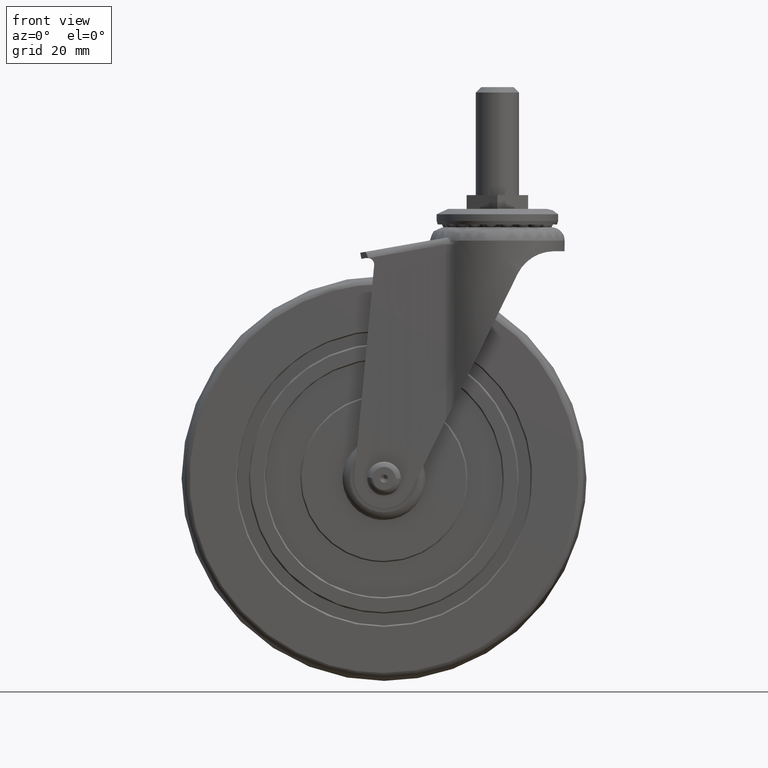
[diagram: clean part render]
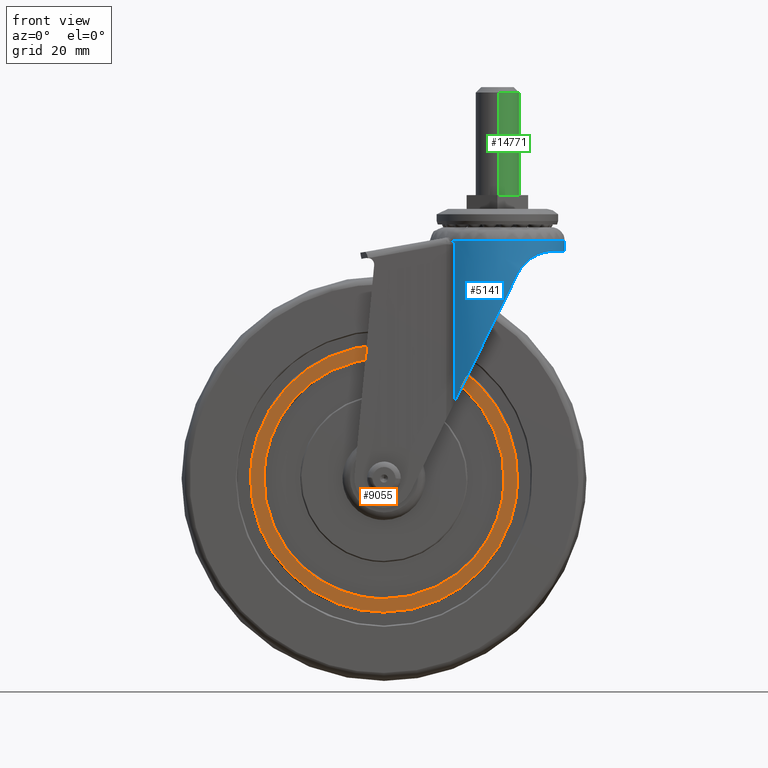
[diagram: same view with three faces highlighted in distinct colors, each labeled with its STEP entity id]
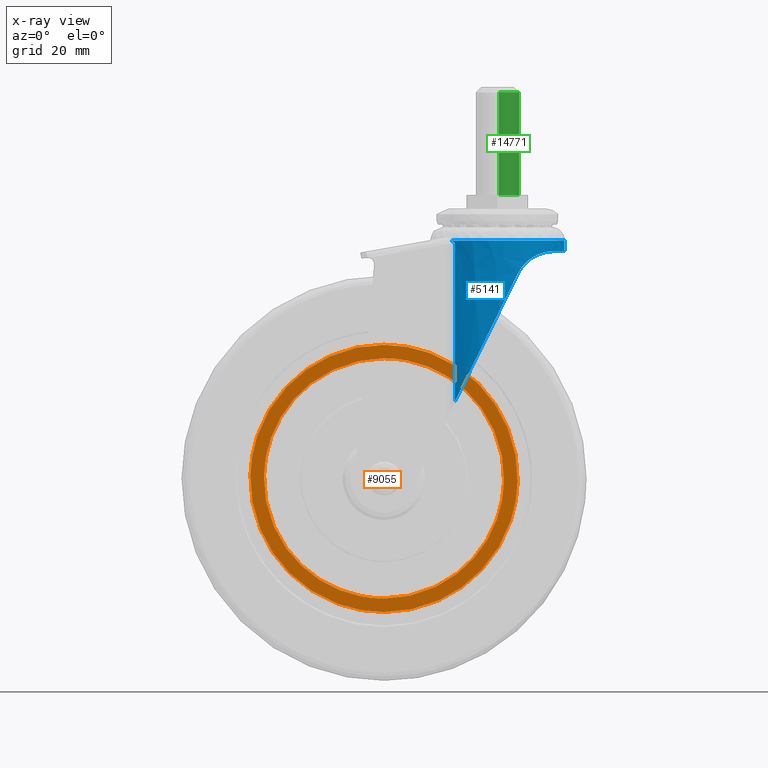
[diagram: x-ray of the same camera — body ghosted, the three highlighted faces saturated]
A machine part, front view with three faces highlighted in distinct colors.
The next image is the same camera in x-ray (body ghosted, the three faces saturated) — at least one of them is partly hidden behind the body in this view.
Their STEP definitions:

[orange] entity #9055 — the highlighted face is a freeform B-spline surface patch.
#6862=CARTESIAN_POINT('',(49.484367495390323,-13.499999999999970,-1.243939728265890));
#6863=VERTEX_POINT('',#6862);
#6877=CARTESIAN_POINT('',(0.0,-13.500000000000000,-49.500000000000000));
#6878=VERTEX_POINT('',#6877);
#6879=CARTESIAN_POINT('',(0.0,-13.500000000000000,-49.500000000000000));
#6880=CARTESIAN_POINT('',(48.271304869661485,-13.500000000000000,-49.500000000000007));
#6881=CARTESIAN_POINT('',(49.484367495390309,-13.499999999999968,-1.243939728265890));
#6889=(BOUNDED_CURVE()B_SPLINE_CURVE(2,(#6879,#6880,#6881),.UNSPECIFIED.,.F.,.U.)B_SPLINE_CURVE_WITH_KNOTS((3,3),(0.0,0.245579891765167),.UNSPECIFIED.)CURVE()GEOMETRIC_REPRESENTATION_ITEM()RATIONAL_B_SPLINE_CURVE((1.0,0.712285260100164,0.989826157671087))REPRESENTATION_ITEM(''));
#6890=EDGE_CURVE('',#6878,#6863,#6889,.T.);
#6892=CARTESIAN_POINT('',(-49.484367495390323,-13.499999999999970,1.243939728265908));
#6893=VERTEX_POINT('',#6892);
#6894=CARTESIAN_POINT('',(-49.484367495390316,-13.499999999999964,1.243939728265908));
#6895=CARTESIAN_POINT('',(-49.500000000000000,-13.499999999999996,0.622068090763839));
#6896=CARTESIAN_POINT('',(-49.500000000000000,-13.500000000000000,1.855278E-015));
#6897=CARTESIAN_POINT('',(-49.499999999999993,-13.500000000000000,-49.499999999999993));
#6898=CARTESIAN_POINT('',(0.0,-13.500000000000000,-49.500000000000000));
#6906=(BOUNDED_CURVE()B_SPLINE_CURVE(2,(#6894,#6895,#6896,#6897,#6898),.UNSPECIFIED.,.F.,.U.)B_SPLINE_CURVE_WITH_KNOTS((3,2,3),(0.745579891765167,0.750000000000000,1.0),.UNSPECIFIED.)CURVE()GEOMETRIC_REPRESENTATION_ITEM()RATIONAL_B_SPLINE_CURVE((0.989826157671086,0.994821521086383,1.0,0.707106781186548,1.0))REPRESENTATION_ITEM(''));
#6907=EDGE_CURVE('',#6893,#6878,#6906,.T.);
#6951=CARTESIAN_POINT('',(0.0,-13.500000000000000,49.500000000000000));
#6952=VERTEX_POINT('',#6951);
#6953=CARTESIAN_POINT('',(0.0,-13.500000000000000,49.500000000000000));
#6954=CARTESIAN_POINT('',(-48.271304869661357,-13.500000000000000,49.500000000000000));
#6955=CARTESIAN_POINT('',(-49.484367495390309,-13.499999999999973,1.243939728265908));
#6963=(BOUNDED_CURVE()B_SPLINE_CURVE(2,(#6953,#6954,#6955),.UNSPECIFIED.,.F.,.U.)B_SPLINE_CURVE_WITH_KNOTS((3,3),(0.500000000000000,0.745579891765166),.UNSPECIFIED.)CURVE()GEOMETRIC_REPRESENTATION_ITEM()RATIONAL_B_SPLINE_CURVE((1.0,0.712285260100165,0.989826157671086))REPRESENTATION_ITEM(''));
#6964=EDGE_CURVE('',#6952,#6893,#6963,.T.);
#6966=CARTESIAN_POINT('',(49.484367495390316,-13.499999999999972,-1.243939728265890));
#6967=CARTESIAN_POINT('',(49.500000000000007,-13.500000000000005,-0.622068090763819));
#6968=CARTESIAN_POINT('',(49.500000000000000,-13.500000000000000,1.855278E-015));
#6969=CARTESIAN_POINT('',(49.499999999999993,-13.500000000000000,49.499999999999993));
#6970=CARTESIAN_POINT('',(0.0,-13.500000000000000,49.500000000000000));
#6978=(BOUNDED_CURVE()B_SPLINE_CURVE(2,(#6966,#6967,#6968,#6969,#6970),.UNSPECIFIED.,.F.,.U.)B_SPLINE_CURVE_WITH_KNOTS((3,2,3),(0.245579891765167,0.250000000000000,0.500000000000000),.UNSPECIFIED.)CURVE()GEOMETRIC_REPRESENTATION_ITEM()RATIONAL_B_SPLINE_CURVE((0.989826157671087,0.994821521086383,1.0,0.707106781186548,1.0))REPRESENTATION_ITEM(''));
#6979=EDGE_CURVE('',#6863,#6952,#6978,.T.);
#7009=CARTESIAN_POINT('',(44.485946417394359,-13.500000000000000,-1.118289247187698));
#7010=VERTEX_POINT('',#7009);
#7011=CARTESIAN_POINT('',(0.0,-13.500000000000000,44.500000000000000));
#7012=VERTEX_POINT('',#7011);
#7013=CARTESIAN_POINT('',(44.485946417394359,-13.499999999999996,-1.118289247187698));
#7014=CARTESIAN_POINT('',(44.499999999999993,-13.500000000000004,-0.559232929593148));
#7015=CARTESIAN_POINT('',(44.500000000000000,-13.500000000000000,1.855278E-015));
#7016=CARTESIAN_POINT('',(44.500000000000000,-13.500000000000000,44.500000000000000));
#7017=CARTESIAN_POINT('',(0.0,-13.500000000000000,44.500000000000000));
#7025=(BOUNDED_CURVE()B_SPLINE_CURVE(2,(#7013,#7014,#7015,#7016,#7017),.UNSPECIFIED.,.F.,.U.)B_SPLINE_CURVE_WITH_KNOTS((3,2,3),(0.245579891769000,0.250000000000000,0.500000000000000),.UNSPECIFIED.)CURVE()GEOMETRIC_REPRESENTATION_ITEM()RATIONAL_B_SPLINE_CURVE((0.989826157679750,0.994821521090874,1.0,0.707106781186547,1.0))REPRESENTATION_ITEM(''));
#7026=EDGE_CURVE('',#7010,#7012,#7025,.T.);
#7028=CARTESIAN_POINT('',(-44.485946417394359,-13.500000000000000,1.118289247187687));
#7029=VERTEX_POINT('',#7028);
#7030=CARTESIAN_POINT('',(0.0,-13.500000000000000,44.500000000000000));
#7031=CARTESIAN_POINT('',(-43.395415489838264,-13.500000000000002,44.499999999999979));
#7032=CARTESIAN_POINT('',(-44.485946417394359,-13.499999999999998,1.118289247187688));
#7040=(BOUNDED_CURVE()B_SPLINE_CURVE(2,(#7030,#7031,#7032),.UNSPECIFIED.,.F.,.U.)B_SPLINE_CURVE_WITH_KNOTS((3,3),(0.500000000000000,0.745579891768999),.UNSPECIFIED.)CURVE()GEOMETRIC_REPRESENTATION_ITEM()RATIONAL_B_SPLINE_CURVE((1.0,0.712285260095675,0.989826157679748))REPRESENTATION_ITEM(''));
#7041=EDGE_CURVE('',#7012,#7029,#7040,.T.);
#7098=CARTESIAN_POINT('',(0.0,-13.500000000000000,-44.500000000000000));
#7099=VERTEX_POINT('',#7098);
#7100=CARTESIAN_POINT('',(0.0,-13.500000000000000,-44.500000000000000));
#7101=CARTESIAN_POINT('',(43.395415489838406,-13.500000000000000,-44.499999999999993));
#7102=CARTESIAN_POINT('',(44.485946417394359,-13.499999999999998,-1.118289247187698));
#7110=(BOUNDED_CURVE()B_SPLINE_CURVE(2,(#7100,#7101,#7102),.UNSPECIFIED.,.F.,.U.)B_SPLINE_CURVE_WITH_KNOTS((3,3),(0.0,0.245579891769000),.UNSPECIFIED.)CURVE()GEOMETRIC_REPRESENTATION_ITEM()RATIONAL_B_SPLINE_CURVE((1.0,0.712285260095674,0.989826157679750))REPRESENTATION_ITEM(''));
#7111=EDGE_CURVE('',#7099,#7010,#7110,.T.);
#7118=CARTESIAN_POINT('',(-44.485946417394366,-13.500000000000005,1.118289247187688));
#7119=CARTESIAN_POINT('',(-44.500000000000007,-13.500000000000002,0.559232929593141));
#7120=CARTESIAN_POINT('',(-44.500000000000000,-13.500000000000000,1.855278E-015));
#7121=CARTESIAN_POINT('',(-44.500000000000000,-13.500000000000000,-44.500000000000000));
#7122=CARTESIAN_POINT('',(0.0,-13.500000000000000,-44.500000000000000));
#7130=(BOUNDED_CURVE()B_SPLINE_CURVE(2,(#7118,#7119,#7120,#7121,#7122),.UNSPECIFIED.,.F.,.U.)B_SPLINE_CURVE_WITH_KNOTS((3,2,3),(0.745579891769000,0.750000000000000,1.0),.UNSPECIFIED.)CURVE()GEOMETRIC_REPRESENTATION_ITEM()RATIONAL_B_SPLINE_CURVE((0.989826157679750,0.994821521090874,1.0,0.707106781186547,1.0))REPRESENTATION_ITEM(''));
#7131=EDGE_CURVE('',#7029,#7099,#7130,.T.);
#9038=CARTESIAN_POINT('',(-54.427855616359210,-13.500000000000000,54.445049808118789));
#9039=CARTESIAN_POINT('',(-54.427855616359210,-13.500000000000000,-54.445052463505718));
#9040=CARTESIAN_POINT('',(54.427858270907528,-13.500000000000000,54.445049808118789));
#9041=CARTESIAN_POINT('',(54.427858270907528,-13.500000000000000,-54.445052463505718));
#9042=B_SPLINE_SURFACE_WITH_KNOTS('',1,1,((#9038,#9040),(#9039,#9041)),.UNSPECIFIED.,.F.,.F.,.U.,(2,2),(2,2),(0.0,108.890102271624500),(0.0,108.855713887266800),.UNSPECIFIED.);
#9043=ORIENTED_EDGE('',*,*,#6890,.T.);
#9044=ORIENTED_EDGE('',*,*,#6979,.T.);
#9045=ORIENTED_EDGE('',*,*,#6964,.T.);
#9046=ORIENTED_EDGE('',*,*,#6907,.T.);
#9047=EDGE_LOOP('',(#9043,#9044,#9045,#9046));
#9048=FACE_OUTER_BOUND('',#9047,.T.);
#9049=ORIENTED_EDGE('',*,*,#7041,.F.);
#9050=ORIENTED_EDGE('',*,*,#7026,.F.);
#9051=ORIENTED_EDGE('',*,*,#7111,.F.);
#9052=ORIENTED_EDGE('',*,*,#7131,.F.);
#9053=EDGE_LOOP('',(#9049,#9050,#9051,#9052));
#9054=FACE_BOUND('',#9053,.T.);
#9055=ADVANCED_FACE('',(#9048,#9054),#9042,.T.);

[blue] entity #5141 — the highlighted face is a freeform B-spline surface patch.
#2411=CARTESIAN_POINT('',(55.379991379760142,21.118139848896359,88.099995001274380));
#2412=VERTEX_POINT('',#2411);
#2426=CARTESIAN_POINT('',(25.074347055175949,18.398974764681100,88.099995000000092));
#2427=VERTEX_POINT('',#2426);
#2428=CARTESIAN_POINT('',(25.074347055175998,18.398974764681061,88.099995000000092));
#2429=CARTESIAN_POINT('',(39.184506428039974,31.379244784927007,88.099995000000092));
#2430=CARTESIAN_POINT('',(55.379991379760149,21.118139848896352,88.099995001274380));
#2438=(BOUNDED_CURVE()B_SPLINE_CURVE(2,(#2428,#2429,#2430),.UNSPECIFIED.,.F.,.U.)B_SPLINE_CURVE_WITH_KNOTS((3,3),(0.0,0.279399680574172),.UNSPECIFIED.)CURVE()GEOMETRIC_REPRESENTATION_ITEM()RATIONAL_B_SPLINE_CURVE((1.0,0.762401471137203,0.923112660689358))REPRESENTATION_ITEM(''));
#2439=EDGE_CURVE('',#2427,#2412,#2438,.T.);
#2506=CARTESIAN_POINT('',(25.022755751862601,-18.351380812873149,88.099995000000092));
#2507=VERTEX_POINT('',#2506);
#2523=CARTESIAN_POINT('',(66.928972506515379,-1.883170138198051,88.099995001279154));
#2524=VERTEX_POINT('',#2523);
#2525=CARTESIAN_POINT('',(66.928972506515379,-1.883170138198051,88.099995001279154));
#2526=CARTESIAN_POINT('',(66.243719502031510,-10.954391565452415,88.099995000000092));
#2527=CARTESIAN_POINT('',(59.888922937896787,-17.463860859557670,88.099995000000092));
#2528=CARTESIAN_POINT('',(42.887840046651576,-34.878742033203501,88.099995000000092));
#2529=CARTESIAN_POINT('',(25.022755751862650,-18.351380812873099,88.099995000000092));
#2537=(BOUNDED_CURVE()B_SPLINE_CURVE(2,(#2525,#2526,#2527,#2528,#2529),.UNSPECIFIED.,.F.,.U.)B_SPLINE_CURVE_WITH_KNOTS((3,2,3),(0.515180778970050,0.666666666666667,1.0),.UNSPECIFIED.)CURVE()GEOMETRIC_REPRESENTATION_ITEM()RATIONAL_B_SPLINE_CURVE((0.859444296361106,0.871178005693403,1.0,0.716536864114606,1.0))REPRESENTATION_ITEM(''));
#2538=EDGE_CURVE('',#2524,#2507,#2537,.T.);
#2578=CARTESIAN_POINT('',(55.379991379760142,21.118139848896355,88.099995001274380));
#2579=CARTESIAN_POINT('',(57.878044135979742,19.535428275657100,88.099995000000092));
#2580=CARTESIAN_POINT('',(59.937884965142374,17.413566061474022,88.099995000000092));
#2581=CARTESIAN_POINT('',(67.776691222540450,9.338734954918783,88.099995000000092));
#2582=CARTESIAN_POINT('',(66.928972506515379,-1.883170138198051,88.099995001279154));
#2590=(BOUNDED_CURVE()B_SPLINE_CURVE(2,(#2578,#2579,#2580,#2581,#2582),.UNSPECIFIED.,.F.,.U.)B_SPLINE_CURVE_WITH_KNOTS((3,2,3),(0.279399680574171,0.333333333333333,0.515180778970050),.UNSPECIFIED.)CURVE()GEOMETRIC_REPRESENTATION_ITEM()RATIONAL_B_SPLINE_CURVE((0.923112660689357,0.954135392977402,1.0,0.845358858421203,0.859444296361106))REPRESENTATION_ITEM(''));
#2591=EDGE_CURVE('',#2412,#2524,#2590,.T.);
#3188=CARTESIAN_POINT('',(26.276602395577498,19.436428884268899,28.530350425748900));
#3189=VERTEX_POINT('',#3188);
#3205=CARTESIAN_POINT('',(26.276602395577552,19.436428884268949,86.726631020429011));
#3206=VERTEX_POINT('',#3205);
#3220=CARTESIAN_POINT('',(26.276602395577498,19.436428884268899,28.530350425748900));
#3221=CARTESIAN_POINT('',(26.276602395577559,19.436428884268910,47.929110623975014));
#3222=CARTESIAN_POINT('',(26.276602395577559,19.436428884268910,67.327870822201007));
#3223=CARTESIAN_POINT('',(26.276602395577552,19.436428884268949,86.726631020429011));
#3224=QUASI_UNIFORM_CURVE('',3,(#3220,#3221,#3222,#3223),.UNSPECIFIED.,.F.,.U.);
#3225=EDGE_CURVE('',#3189,#3206,#3224,.T.);
#3303=CARTESIAN_POINT('',(26.276602395577662,19.436428884268992,86.726631020428997));
#3304=CARTESIAN_POINT('',(26.275293949396509,19.435370765942970,86.763454329114538));
#3305=CARTESIAN_POINT('',(26.272655665737119,19.433237230510311,86.837702956982611));
#3306=CARTESIAN_POINT('',(26.251606721170919,19.416191888497469,86.948083596667331));
#3307=CARTESIAN_POINT('',(26.218195739146939,19.389056789983812,87.057382022851144));
#3308=CARTESIAN_POINT('',(26.171309273694941,19.350816733266040,87.165566470412983));
#3309=CARTESIAN_POINT('',(26.085889557313500,19.280757305022838,87.318559214100290));
#3310=CARTESIAN_POINT('',(25.944244228952520,19.163335080716429,87.500828243864589));
#3311=CARTESIAN_POINT('',(25.760833079945328,19.008156647393250,87.660780158741701));
#3312=CARTESIAN_POINT('',(25.546765446049100,18.823310949533830,87.781768830590195));
#3313=CARTESIAN_POINT('',(25.376030660700970,18.672551408194920,87.866040528778541));
#3314=CARTESIAN_POINT('',(25.232421321539530,18.543260854406839,87.941400023406601));
#3315=CARTESIAN_POINT('',(25.159649831264652,18.477150806835510,87.992914498669123));
#3316=CARTESIAN_POINT('',(25.105118887068450,18.427264000515379,88.041421691400885));
#3317=CARTESIAN_POINT('',(25.083575794432431,18.407458951849090,88.082428356768062));
#3318=CARTESIAN_POINT('',(25.074347055175991,18.398974764681050,88.099994999999993));
#3319=B_SPLINE_CURVE_WITH_KNOTS('',3,(#3303,#3304,#3305,#3306,#3307,#3308,#3309,#3310,#3311,#3312,#3313,#3314,#3315,#3316,#3317,#3318),.UNSPECIFIED.,.F.,.U.,(4,1,1,1,1,1,1,1,1,1,1,1,1,4),(0.0,0.049636943291053,0.100085382397273,0.152461301079727,0.207764118186397,0.266844901971759,0.406644860115500,0.554602683833238,0.653247805519854,0.820950986558730,0.882696968847899,0.932503898434406,0.971085677776204,1.0),.UNSPECIFIED.);
#3320=EDGE_CURVE('',#3206,#2427,#3319,.T.);
#3786=CARTESIAN_POINT('',(26.227839187859949,-19.396879731441249,86.717361208894587));
#3787=VERTEX_POINT('',#3786);
#3801=CARTESIAN_POINT('',(25.022755751862690,-18.351380812873149,88.099994999999993));
#3802=CARTESIAN_POINT('',(25.029617422811071,-18.357725527349331,88.086110110257550));
#3803=CARTESIAN_POINT('',(25.045161914202431,-18.372098900875638,88.054655155524884));
#3804=CARTESIAN_POINT('',(25.083018944030918,-18.406980666848341,88.015309061963748));
#3805=CARTESIAN_POINT('',(25.132832382360672,-18.452658332369321,87.974541138354581));
#3806=CARTESIAN_POINT('',(25.196732563789379,-18.510896127685061,87.933450579540093));
#3807=CARTESIAN_POINT('',(25.330585223699060,-18.631946777485052,87.863447081569007));
#3808=CARTESIAN_POINT('',(25.496038519503799,-18.778857956554820,87.781689947295874));
#3809=CARTESIAN_POINT('',(25.710545662074800,-18.965086504988999,87.659447250816697));
#3810=CARTESIAN_POINT('',(25.894760980628089,-19.121773557097100,87.497570928071497));
#3811=CARTESIAN_POINT('',(26.052060997901378,-19.252850487132431,87.294150985354108));
#3812=CARTESIAN_POINT('',(26.156155765908188,-19.338454900875121,87.093028600906962));
#3813=CARTESIAN_POINT('',(26.216502917933770,-19.387671020432521,86.906847512660391));
#3814=CARTESIAN_POINT('',(26.224124752361231,-19.393862410638938,86.779448179110432));
#3815=CARTESIAN_POINT('',(26.227839187859949,-19.396879731441249,86.717361208894587));
#3816=B_SPLINE_CURVE_WITH_KNOTS('',3,(#3801,#3802,#3803,#3804,#3805,#3806,#3807,#3808,#3809,#3810,#3811,#3812,#3813,#3814,#3815),.UNSPECIFIED.,.F.,.U.,(4,1,1,1,1,1,1,1,1,1,1,1,4),(0.0,0.022338032621168,0.050604781020853,0.085795139517335,0.128421941640627,0.178771296470803,0.345564630990785,0.445072589217223,0.593082655438537,0.733115100632016,0.829452583203906,0.916885182271157,1.0),.UNSPECIFIED.);
#3817=EDGE_CURVE('',#2507,#3787,#3816,.T.);
#3863=CARTESIAN_POINT('',(26.227839187859900,-19.396879731441249,28.431119790046449));
#3864=VERTEX_POINT('',#3863);
#3875=CARTESIAN_POINT('',(26.227839187859949,-19.396879731441249,86.717361208894587));
#3876=CARTESIAN_POINT('',(26.227839187860049,-19.396879731441260,67.288614069278637));
#3877=CARTESIAN_POINT('',(26.227839187860049,-19.396879731441260,47.859866929662303));
#3878=CARTESIAN_POINT('',(26.227839187859900,-19.396879731441249,28.431119790046449));
#3879=QUASI_UNIFORM_CURVE('',3,(#3875,#3876,#3877,#3878),.UNSPECIFIED.,.F.,.U.);
#3880=EDGE_CURVE('',#3787,#3864,#3879,.T.);
#4462=CARTESIAN_POINT('',(49.518290358037802,-23.842720274587801,75.825997682429900));
#4463=VERTEX_POINT('',#4462);
#4469=CARTESIAN_POINT('',(49.518290358037802,-23.842720274587801,75.825997682429900));
#4470=CARTESIAN_POINT('',(36.675717525678728,-27.892350114888675,49.692018277467831));
#4471=CARTESIAN_POINT('',(26.227839187859900,-19.396879731441249,28.431119790046449));
#4479=(BOUNDED_CURVE()B_SPLINE_CURVE(2,(#4469,#4470,#4471),.UNSPECIFIED.,.F.,.U.)CURVE()GEOMETRIC_REPRESENTATION_ITEM()QUASI_UNIFORM_CURVE()RATIONAL_B_SPLINE_CURVE((1.0,0.880406584744681,1.0))REPRESENTATION_ITEM(''));
#4480=EDGE_CURVE('',#4463,#3864,#4479,.T.);
#4525=CARTESIAN_POINT('',(49.518290358037802,23.842720274587549,75.825997682429900));
#4526=VERTEX_POINT('',#4525);
#4527=CARTESIAN_POINT('',(26.276602395577541,19.436428884268899,28.530350425748921));
#4528=CARTESIAN_POINT('',(36.714317184623845,27.880178540491237,49.770566610818044));
#4529=CARTESIAN_POINT('',(49.518290358037802,23.842720274587549,75.825997682429900));
#4537=(BOUNDED_CURVE()B_SPLINE_CURVE(2,(#4527,#4528,#4529),.UNSPECIFIED.,.F.,.U.)CURVE()GEOMETRIC_REPRESENTATION_ITEM()QUASI_UNIFORM_CURVE()RATIONAL_B_SPLINE_CURVE((1.0,0.881001370450515,1.0))REPRESENTATION_ITEM(''));
#4538=EDGE_CURVE('',#3189,#4526,#4537,.T.);
#4602=CARTESIAN_POINT('',(62.967741033245787,-13.614471563844701,84.199996999999996));
#4603=VERTEX_POINT('',#4602);
#4604=CARTESIAN_POINT('',(62.967741033245787,-13.614471563844701,84.199996999999996));
#4605=CARTESIAN_POINT('',(62.833449936217768,-13.821289543254830,84.199924659103715));
#4606=CARTESIAN_POINT('',(62.696229234348500,-14.025915765834130,84.198044563318859));
#4607=CARTESIAN_POINT('',(62.147150194949042,-14.819186137712720,84.182687622250725));
#4608=CARTESIAN_POINT('',(61.713455158185177,-15.391414546377870,84.153923148869410));
#4609=CARTESIAN_POINT('',(61.026018651662767,-16.221570529866280,84.074559380295369));
#4610=CARTESIAN_POINT('',(60.790716915830743,-16.493585322391251,84.042048522327192));
#4611=CARTESIAN_POINT('',(60.428493189780127,-16.894459083511709,83.982677333733108));
#4612=CARTESIAN_POINT('',(60.306206322456831,-17.026891862189071,83.961117438171939));
#4613=CARTESIAN_POINT('',(60.058529963489171,-17.289353373093810,83.914177423237945));
#4614=CARTESIAN_POINT('',(59.933142970179027,-17.419367008410781,83.888790198768461));
#4615=CARTESIAN_POINT('',(59.302682764611802,-18.059159506900990,83.752545136936988));
#4616=CARTESIAN_POINT('',(58.783804431775970,-18.541603379351500,83.613256486077560));
#4617=CARTESIAN_POINT('',(57.722862334406337,-19.449390236437839,83.261370167299503));
#4618=CARTESIAN_POINT('',(57.180772784882677,-19.874729039663571,83.048836685314029));
#4619=CARTESIAN_POINT('',(56.492613855470047,-20.371370887963732,82.727575599752655));
#4620=CARTESIAN_POINT('',(56.354457161515263,-20.468946322511169,82.660533298962577));
#4621=CARTESIAN_POINT('',(56.077205350770917,-20.660602649509048,82.520574695715055));
#4622=CARTESIAN_POINT('',(55.938635612191007,-20.754314833993771,82.447914953424771));
#4623=CARTESIAN_POINT('',(55.525093253970418,-21.028100335753280,82.222675914572321));
#4624=CARTESIAN_POINT('',(55.251548383069263,-21.201337608367439,82.062469517954440));
#4625=CARTESIAN_POINT('',(54.439093562421981,-21.694941082070262,81.550695819180035));
#4626=CARTESIAN_POINT('',(53.908320512852903,-21.989236415130598,81.168061150288423));
#4627=CARTESIAN_POINT('',(53.135832936051777,-22.384744976136670,80.526657620292227));
#4628=CARTESIAN_POINT('',(52.882290843956063,-22.508915548380191,80.301595466476797));
#4629=CARTESIAN_POINT('',(52.508956164928897,-22.684370454447240,79.946218480960042));
#4630=CARTESIAN_POINT('',(52.385675491208602,-22.741054746099490,79.824793573013906));
#4631=CARTESIAN_POINT('',(52.141633738585362,-22.850932110265600,79.575836032828548));
#4632=CARTESIAN_POINT('',(52.021757594832451,-22.903727465152478,79.449205033618298));
#4633=CARTESIAN_POINT('',(51.433335630742768,-23.157611510545721,78.805493447728239));
#4634=CARTESIAN_POINT('',(50.997451780351327,-23.328653986775318,78.256745520271252));
#4635=CARTESIAN_POINT('',(50.399422980590423,-23.547711937684600,77.383342522842725));
#4636=CARTESIAN_POINT('',(50.209398604684708,-23.614444494065420,77.083804519821712));
#4637=CARTESIAN_POINT('',(49.938995280836473,-23.706146885461411,76.621706020807423));
#4638=CARTESIAN_POINT('',(49.807454538448418,-23.749896194482041,76.387456265669456));
#4639=CARTESIAN_POINT('',(49.681554708359862,-23.790661962174049,76.148345051661323));
#4640=CARTESIAN_POINT('',(49.598893749199959,-23.817193276476360,75.987848537856379));
#4641=CARTESIAN_POINT('',(49.558185086932824,-23.830140302613760,75.907022646650233));
#4642=CARTESIAN_POINT('',(49.518290358037802,-23.842720274587801,75.825997682429900));
#4643=B_SPLINE_CURVE_WITH_KNOTS('',3,(#4604,#4605,#4606,#4607,#4608,#4609,#4610,#4611,#4612,#4613,#4614,#4615,#4616,#4617,#4618,#4619,#4620,#4621,#4622,#4623,#4624,#4625,#4626,#4627,#4628,#4629,#4630,#4631,#4632,#4633,#4634,#4635,#4636,#4637,#4638,#4639,#4640,#4641,#4642),.UNSPECIFIED.,.F.,.U.,(4,2,2,2,2,2,2,2,2,2,2,2,2,2,2,2,2,1,2,4),(0.708042423271960,0.718750000000003,0.750000000000003,0.765625000000002,0.773437500000002,0.781250000000002,0.812500000000000,0.843749999999999,0.851562499999999,0.859374999999998,0.874999999999998,0.906249999999998,0.921874999999998,0.929687499999998,0.937499999999998,0.968749999999999,0.984375000000000,0.992187500000000,0.996093750000000,1.0),.UNSPECIFIED.);
#4644=EDGE_CURVE('',#4603,#4463,#4643,.T.);
#4710=CARTESIAN_POINT('',(62.967741033245787,13.614471563844701,84.199996999999996));
#4711=VERTEX_POINT('',#4710);
#4712=CARTESIAN_POINT('',(49.518290358037802,23.842720274587549,75.825997682429900));
#4713=CARTESIAN_POINT('',(49.675919504685901,23.793015207254520,76.146137608018506));
#4714=CARTESIAN_POINT('',(49.844971308978643,23.738002087244709,76.460681554382063));
#4715=CARTESIAN_POINT('',(50.115735917403370,23.646223698637598,76.923909329259288));
#4716=CARTESIAN_POINT('',(50.208857501715343,23.614084763829890,77.076885874669301));
#4717=CARTESIAN_POINT('',(50.400869874570809,23.546458772054478,77.379924372044783));
#4718=CARTESIAN_POINT('',(50.499264789802822,23.511144547910231,77.529194028041005));
#4719=CARTESIAN_POINT('',(51.001589382697126,23.327119661416450,78.262644957973421));
#4720=CARTESIAN_POINT('',(51.437672106544227,23.155733752011280,78.810208994833147));
#4721=CARTESIAN_POINT('',(52.136854444411490,22.854070482476320,79.575130676707161));
#4722=CARTESIAN_POINT('',(52.377448256840196,22.746062867224449,79.820671534748115));
#4723=CARTESIAN_POINT('',(52.749014734211457,22.571604161579661,80.174903207119527));
#4724=CARTESIAN_POINT('',(52.874650378728170,22.511375014568578,80.290632433155125));
#4725=CARTESIAN_POINT('',(53.129386652095512,22.386531030347999,80.517390664221395));
#4726=CARTESIAN_POINT('',(53.258605551623148,22.321855625003710,80.628517608434834));
#4727=CARTESIAN_POINT('',(53.911878517448727,21.987534899622460,81.171325395678593));
#4728=CARTESIAN_POINT('',(54.447044828952038,21.690409531629570,81.556217452487928));
#4729=CARTESIAN_POINT('',(55.531763443197711,21.030790222020869,82.238458080395361));
#4730=CARTESIAN_POINT('',(56.081359999808377,20.668305035327819,82.535744555295580));
#4731=CARTESIAN_POINT('',(56.771510994157310,20.170057997253519,82.857735557009164));
#4732=CARTESIAN_POINT('',(56.909868440405397,20.068015408152618,82.919712815623214));
#4733=CARTESIAN_POINT('',(57.184788365218587,19.860805958221079,83.037992979966489));
#4734=CARTESIAN_POINT('',(57.321568463329129,19.755487457797280,83.094403778201368));
#4735=CARTESIAN_POINT('',(57.729730527320903,19.434382201600741,83.255870688436090));
#4736=CARTESIAN_POINT('',(57.998932881220611,19.213446903364851,83.353169246541484));
#4737=CARTESIAN_POINT('',(58.796778484767962,18.529935726722009,83.617075377345913));
#4738=CARTESIAN_POINT('',(59.315656289354450,18.046676413064642,83.755768956728787));
#4739=CARTESIAN_POINT('',(59.944710557559389,17.407447587634220,83.891178194408781));
#4740=CARTESIAN_POINT('',(60.069544669093659,17.277842383731809,83.916355950300883));
#4741=CARTESIAN_POINT('',(60.317178110590362,17.015089188161749,83.963096512013891));
#4742=CARTESIAN_POINT('',(60.439887842023460,16.882026154638410,83.984637174954671));
#4743=CARTESIAN_POINT('',(60.802709434574261,16.479931736271130,84.043814590159243));
#4744=CARTESIAN_POINT('',(61.038248907712791,16.207226107804111,84.076157993097198));
#4745=CARTESIAN_POINT('',(61.725995694183062,15.375385814822510,84.154980802312693));
#4746=CARTESIAN_POINT('',(62.159362237561893,14.802551940524040,84.183338430163815));
#4747=CARTESIAN_POINT('',(62.703799774151868,14.014622937824649,84.198146592366825));
#4748=CARTESIAN_POINT('',(62.837174765063907,13.815552777899040,84.199926274388204));
#4749=CARTESIAN_POINT('',(62.967741033245787,13.614471563844701,84.199996999999996));
#4750=B_SPLINE_CURVE_WITH_KNOTS('',3,(#4712,#4713,#4714,#4715,#4716,#4717,#4718,#4719,#4720,#4721,#4722,#4723,#4724,#4725,#4726,#4727,#4728,#4729,#4730,#4731,#4732,#4733,#4734,#4735,#4736,#4737,#4738,#4739,#4740,#4741,#4742,#4743,#4744,#4745,#4746,#4747,#4748,#4749),.UNSPECIFIED.,.F.,.U.,(4,2,2,2,2,2,2,2,2,2,2,2,2,2,2,2,2,2,4),(0.0,0.015625000000001,0.023437500000002,0.031250000000002,0.062500000000005,0.078125000000006,0.085937500000007,0.093750000000007,0.125000000000007,0.156250000000008,0.164062500000008,0.171875000000007,0.187500000000007,0.218750000000007,0.226562500000007,0.234375000000006,0.250000000000006,0.281250000000006,0.291672468982274),.UNSPECIFIED.);
#4751=EDGE_CURVE('',#4526,#4711,#4750,.T.);
#4816=CARTESIAN_POINT('',(62.967741033245872,13.614471563844759,84.199996999999996));
#4817=CARTESIAN_POINT('',(71.807693590311757,6.938894E-015,84.199997000000010));
#4818=CARTESIAN_POINT('',(62.967741033245872,-13.614471563844750,84.199996999999996));
#4826=(BOUNDED_CURVE()B_SPLINE_CURVE(2,(#4816,#4817,#4818),.UNSPECIFIED.,.F.,.U.)CURVE()GEOMETRIC_REPRESENTATION_ITEM()QUASI_UNIFORM_CURVE()RATIONAL_B_SPLINE_CURVE((1.0,0.838709641329835,1.0))REPRESENTATION_ITEM(''));
#4827=EDGE_CURVE('',#4711,#4603,#4826,.T.);
#5105=CARTESIAN_POINT('',(24.486090646423690,17.839926545664689,26.939397909765631));
#5106=CARTESIAN_POINT('',(24.486090646423690,17.839926545664689,89.629009928567001));
#5107=CARTESIAN_POINT('',(42.326017192088365,35.353835899241005,26.939397909765628));
#5108=CARTESIAN_POINT('',(42.326017192088365,35.353835899241005,89.629009928567015));
#5109=CARTESIAN_POINT('',(59.839926545664703,17.513909353576320,26.939397909765631));
#5110=CARTESIAN_POINT('',(59.839926545664703,17.513909353576320,89.629009928567001));
#5111=CARTESIAN_POINT('',(77.353835899241005,-0.326017192088370,26.939397909765628));
#5112=CARTESIAN_POINT('',(77.353835899241005,-0.326017192088370,89.629009928567015));
#5113=CARTESIAN_POINT('',(59.513909353576317,-17.839926545664689,26.939397909765631));
#5114=CARTESIAN_POINT('',(59.513909353576317,-17.839926545664689,89.629009928567001));
#5115=CARTESIAN_POINT('',(41.673982807911621,-35.353835899241005,26.939397909765628));
#5116=CARTESIAN_POINT('',(41.673982807911621,-35.353835899241005,89.629009928567015));
#5117=CARTESIAN_POINT('',(24.160073454335311,-17.513909353576320,26.939397909765631));
#5118=CARTESIAN_POINT('',(24.160073454335311,-17.513909353576320,89.629009928567001));
#5126=(BOUNDED_SURFACE()B_SPLINE_SURFACE(1,2,((#5105,#5107,#5109,#5111,#5113,#5115,#5117),(#5106,#5108,#5110,#5112,#5114,#5116,#5118)),.UNSPECIFIED.,.F.,.F.,.U.)B_SPLINE_SURFACE_WITH_KNOTS((2,2),(3,2,2,3),(0.0,62.689612018801377),(0.0,41.421356237309489,82.842712474618978,124.264068711928500),.UNSPECIFIED.)GEOMETRIC_REPRESENTATION_ITEM()RATIONAL_B_SPLINE_SURFACE(((1.0,0.707106781186548,1.0,0.707106781186548,1.0,0.707106781186548,1.0),(1.0,0.707106781186548,1.0,0.707106781186548,1.0,0.707106781186548,1.0)))REPRESENTATION_ITEM('')SURFACE());
#5127=ORIENTED_EDGE('',*,*,#4538,.F.);
#5128=ORIENTED_EDGE('',*,*,#3225,.T.);
#5129=ORIENTED_EDGE('',*,*,#3320,.T.);
#5130=ORIENTED_EDGE('',*,*,#2439,.T.);
#5131=ORIENTED_EDGE('',*,*,#2591,.T.);
#5132=ORIENTED_EDGE('',*,*,#2538,.T.);
#5133=ORIENTED_EDGE('',*,*,#3817,.T.);
#5134=ORIENTED_EDGE('',*,*,#3880,.T.);
#5135=ORIENTED_EDGE('',*,*,#4480,.F.);
#5136=ORIENTED_EDGE('',*,*,#4644,.F.);
#5137=ORIENTED_EDGE('',*,*,#4827,.F.);
#5138=ORIENTED_EDGE('',*,*,#4751,.F.);
#5139=EDGE_LOOP('',(#5127,#5128,#5129,#5130,#5131,#5132,#5133,#5134,#5135,#5136,#5137,#5138));
#5140=FACE_OUTER_BOUND('',#5139,.T.);
#5141=ADVANCED_FACE('',(#5140),#5126,.T.);

[green] entity #14771 — the highlighted face is a freeform B-spline surface patch.
#14677=CARTESIAN_POINT('',(49.489148630213272,2.812943795132577,143.950004000000010));
#14678=CARTESIAN_POINT('',(49.911712154921211,1.687915613723266,143.950003999999980));
#14679=CARTESIAN_POINT('',(49.985078387374926,0.488388316278856,143.950004000000010));
#14680=CARTESIAN_POINT('',(50.473466703653784,-7.496690071096078,143.950004000000090));
#14681=CARTESIAN_POINT('',(42.488388316278858,-7.985078387374934,143.950004000000010));
#14682=CARTESIAN_POINT('',(49.489148630213272,2.812943795132577,104.026253999999970));
#14683=CARTESIAN_POINT('',(49.911712154921211,1.687915613723266,104.026253999999970));
#14684=CARTESIAN_POINT('',(49.985078387374926,0.488388316278856,104.026253999999990));
#14685=CARTESIAN_POINT('',(50.473466703653784,-7.496690071096078,104.026253999999970));
#14686=CARTESIAN_POINT('',(42.488388316278858,-7.985078387374934,104.026253999999990));
#14694=(BOUNDED_SURFACE()B_SPLINE_SURFACE(2,1,((#14677,#14682),(#14678,#14683),(#14679,#14684),(#14680,#14685),(#14681,#14686)),.UNSPECIFIED.,.F.,.F.,.U.)B_SPLINE_SURFACE_WITH_KNOTS((3,2,3),(2,2),(0.0,2.650966799187808,15.905800795126851),(0.0,39.923750000000041),.UNSPECIFIED.)GEOMETRIC_REPRESENTATION_ITEM()RATIONAL_B_SPLINE_SURFACE(((0.906274169979695,0.906274169979695),(0.941421356237309,0.941421356237309),(1.0,1.0),(0.707106781186548,0.707106781186548),(1.0,1.0)))REPRESENTATION_ITEM('')SURFACE());
#14695=CARTESIAN_POINT('',(49.489148623817229,2.812943812161287,143.000003999999990));
#14696=VERTEX_POINT('',#14695);
#14697=CARTESIAN_POINT('',(50.0,0.0,143.000003999999990));
#14698=VERTEX_POINT('',#14697);
#14699=CARTESIAN_POINT('',(49.489148623817229,2.812943812161288,143.000003999999990));
#14700=CARTESIAN_POINT('',(50.000000000000014,1.452859107324299,143.000003999999960));
#14701=CARTESIAN_POINT('',(50.0,0.0,143.000003999999990));
#14709=(BOUNDED_CURVE()B_SPLINE_CURVE(2,(#14699,#14700,#14701),.UNSPECIFIED.,.F.,.U.)B_SPLINE_CURVE_WITH_KNOTS((3,3),(0.440284170180621,0.500000000000000),.UNSPECIFIED.)CURVE()GEOMETRIC_REPRESENTATION_ITEM()RATIONAL_B_SPLINE_CURVE((0.893499553756752,0.930038553560343,1.0))REPRESENTATION_ITEM(''));
#14710=EDGE_CURVE('',#14696,#14698,#14709,.T.);
#14711=ORIENTED_EDGE('',*,*,#14710,.T.);
#14712=CARTESIAN_POINT('',(42.488388316803622,-7.985078387411580,143.000003999862800));
#14713=VERTEX_POINT('',#14712);
#14714=CARTESIAN_POINT('',(50.0,0.0,143.000003999999990));
#14715=CARTESIAN_POINT('',(49.999999999999993,-7.525648533279372,143.000003999999960));
#14716=CARTESIAN_POINT('',(42.488388316803615,-7.985078387411580,143.000003999862800));
#14724=(BOUNDED_CURVE()B_SPLINE_CURVE(2,(#14714,#14715,#14716),.UNSPECIFIED.,.F.,.U.)B_SPLINE_CURVE_WITH_KNOTS((3,3),(0.500000000000000,0.739332962196972),.UNSPECIFIED.)CURVE()GEOMETRIC_REPRESENTATION_ITEM()RATIONAL_B_SPLINE_CURVE((1.0,0.719603993335882,0.976072041576766))REPRESENTATION_ITEM(''));
#14725=EDGE_CURVE('',#14698,#14713,#14724,.T.);
#14726=ORIENTED_EDGE('',*,*,#14725,.T.);
#14727=CARTESIAN_POINT('',(42.488388316594794,-7.985078387355611,105.000004000000000));
#14728=VERTEX_POINT('',#14727);
#14729=CARTESIAN_POINT('',(42.488388316803622,-7.985078387411580,143.000003999862800));
#14730=CARTESIAN_POINT('',(42.488388316594794,-7.985078387355611,105.000004000000000));
#14731=QUASI_UNIFORM_CURVE('',1,(#14729,#14730),.UNSPECIFIED.,.F.,.U.);
#14732=EDGE_CURVE('',#14713,#14728,#14731,.T.);
#14733=ORIENTED_EDGE('',*,*,#14732,.T.);
#14734=CARTESIAN_POINT('',(50.0,0.0,105.000004000000000));
#14735=VERTEX_POINT('',#14734);
#14736=CARTESIAN_POINT('',(50.0,0.0,105.000004000000000));
#14737=CARTESIAN_POINT('',(50.0,-7.525648534648991,105.000004000000000));
#14738=CARTESIAN_POINT('',(42.488388316594779,-7.985078387355611,105.000004000000030));
#14746=(BOUNDED_CURVE()B_SPLINE_CURVE(2,(#14736,#14737,#14738),.UNSPECIFIED.,.F.,.U.)B_SPLINE_CURVE_WITH_KNOTS((3,3),(0.500000000000000,0.739332962228316),.UNSPECIFIED.)CURVE()GEOMETRIC_REPRESENTATION_ITEM()RATIONAL_B_SPLINE_CURVE((1.0,0.719603993299161,0.976072041643942))REPRESENTATION_ITEM(''));
#14747=EDGE_CURVE('',#14735,#14728,#14746,.T.);
#14748=ORIENTED_EDGE('',*,*,#14747,.F.);
#14749=CARTESIAN_POINT('',(49.489150988207570,2.812937517220143,105.000004000000000));
#14750=VERTEX_POINT('',#14749);
#14751=CARTESIAN_POINT('',(49.489150988207570,2.812937517220142,105.000003999999990));
#14752=CARTESIAN_POINT('',(49.999999999999986,1.452855624875626,105.000003999999990));
#14753=CARTESIAN_POINT('',(50.0,0.0,105.000004000000000));
#14761=(BOUNDED_CURVE()B_SPLINE_CURVE(2,(#14751,#14752,#14753),.UNSPECIFIED.,.F.,.U.)B_SPLINE_CURVE_WITH_KNOTS((3,3),(0.440284303303200,0.500000000000000),.UNSPECIFIED.)CURVE()GEOMETRIC_REPRESENTATION_ITEM()RATIONAL_B_SPLINE_CURVE((0.893499716667352,0.930038709523145,1.0))REPRESENTATION_ITEM(''));
#14762=EDGE_CURVE('',#14750,#14735,#14761,.T.);
#14763=ORIENTED_EDGE('',*,*,#14762,.F.);
#14764=CARTESIAN_POINT('',(49.489148623817229,2.812943812161287,143.000003999999990));
#14765=CARTESIAN_POINT('',(49.489150988207570,2.812937517220143,105.000004000000000));
#14766=QUASI_UNIFORM_CURVE('',1,(#14764,#14765),.UNSPECIFIED.,.F.,.U.);
#14767=EDGE_CURVE('',#14696,#14750,#14766,.T.);
#14768=ORIENTED_EDGE('',*,*,#14767,.F.);
#14769=EDGE_LOOP('',(#14711,#14726,#14733,#14748,#14763,#14768));
#14770=FACE_OUTER_BOUND('',#14769,.T.);
#14771=ADVANCED_FACE('',(#14770),#14694,.T.);